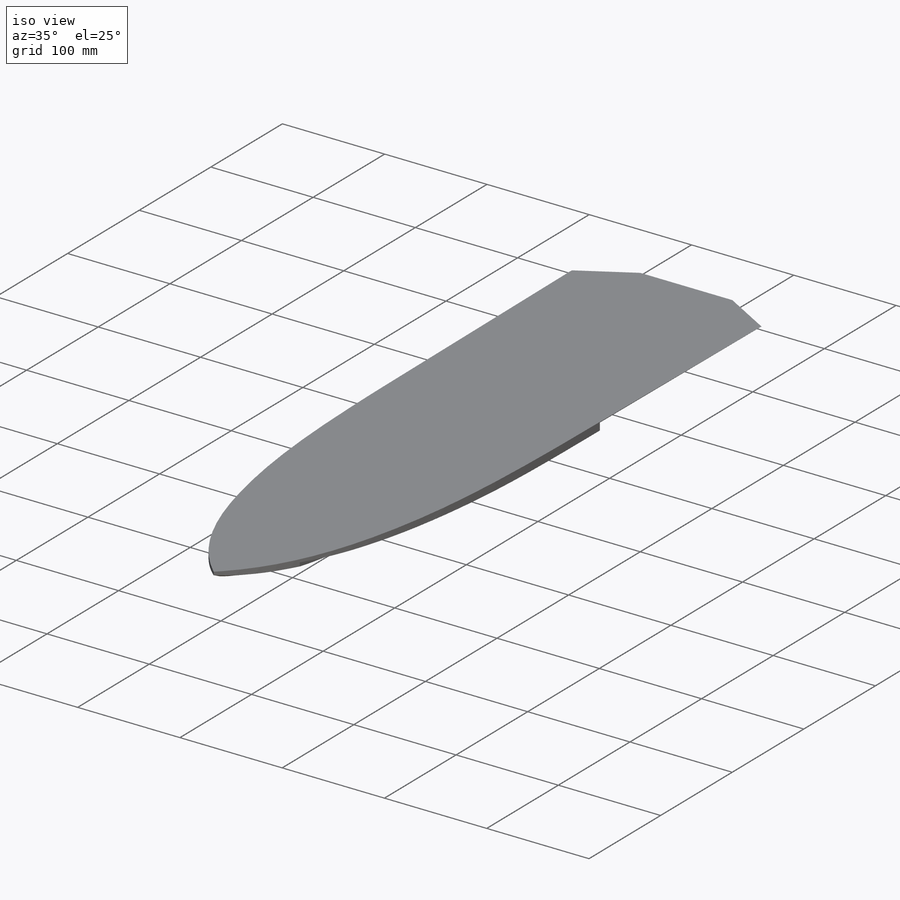
[diagram: iso view]
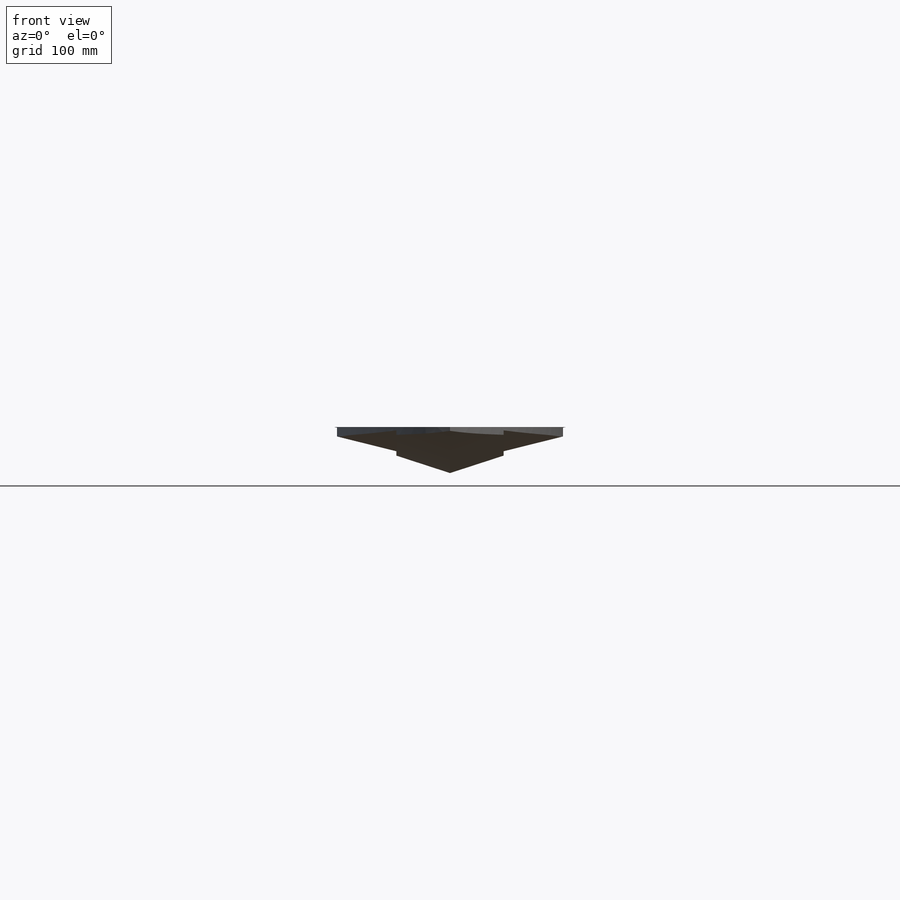
[diagram: front view]
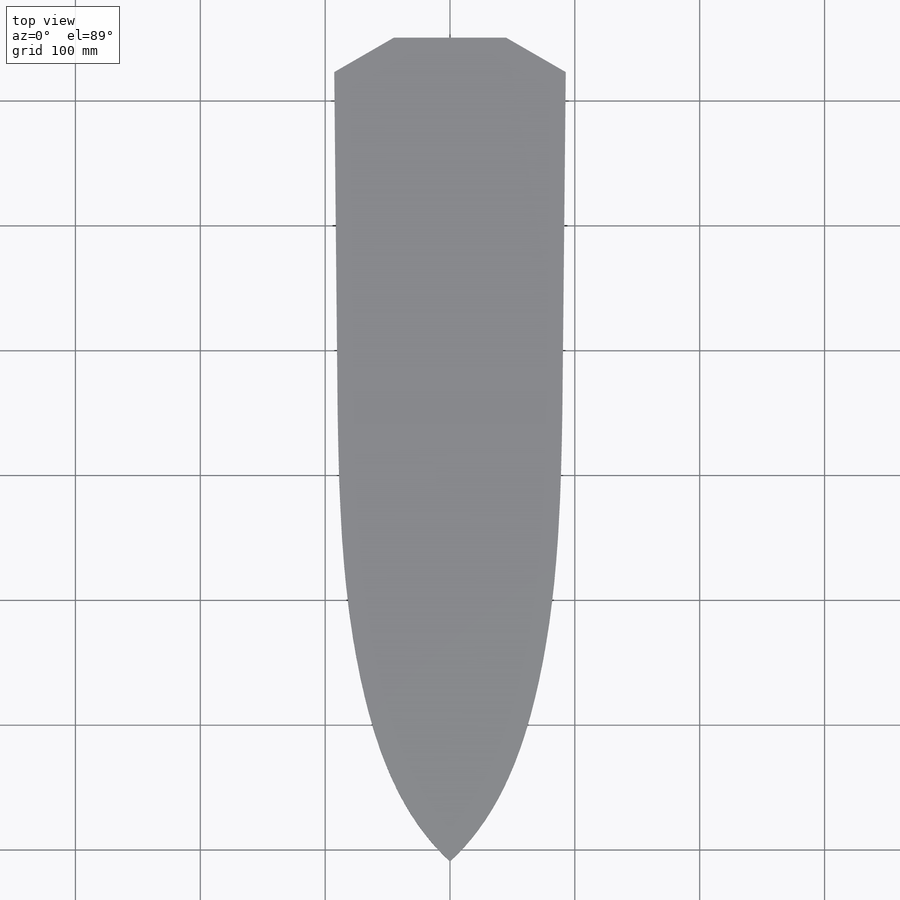
[diagram: top view]
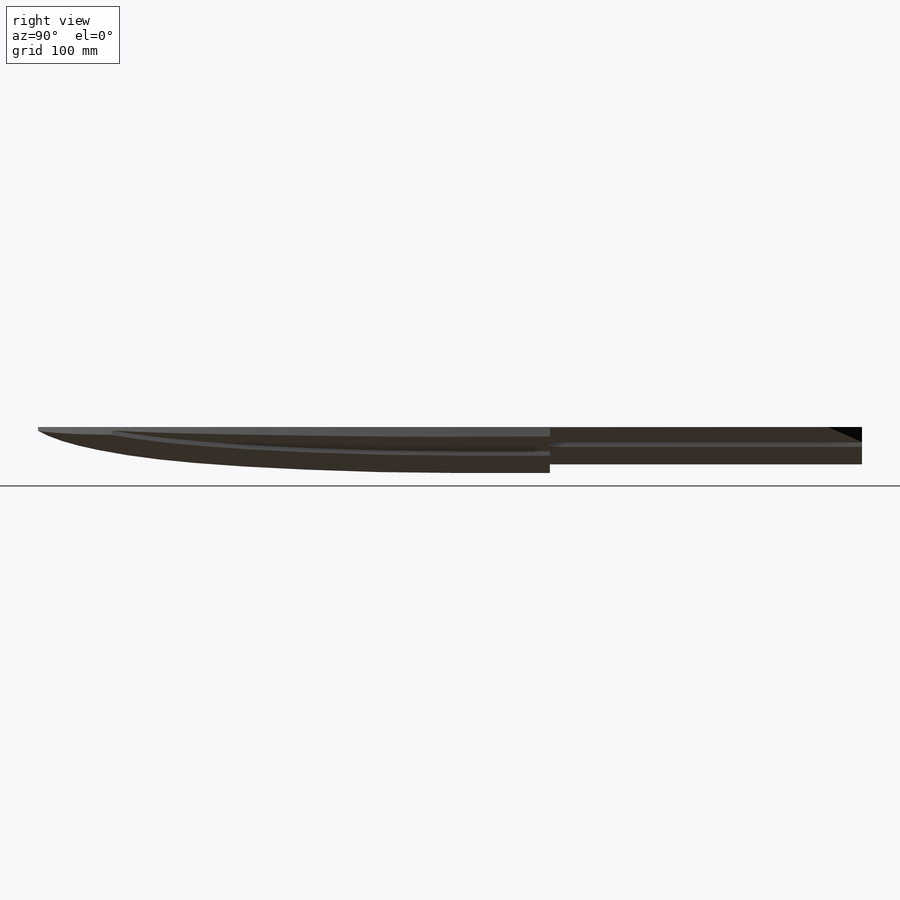
[diagram: right view]
SOLIDWORKS PART (.sldprt)
format: sldprt  version: not decoded by parser v0  size: 338,944 bytes
history: native  units: mm
features: sketch x6, plane x3, cut_extrude x3, material x1, sweep x1, extrude x1 (+10 scaffold rows collapsed)
feature tree (25):
  scaffold x10  (default folders/planes/origin — collapsed)
  material  "Matériau <non spécifié>"
  plane  "Plan de face"
  plane  "Plan de dessus"
  plane  "Plan de droite"
  sketch  "Esquisse1"  dims[c1.D1=170.0mm c1.D2=43.0mm c1.D3=43.0mm c1.D4=3.5mm c1.D5=3.5mm c1.D6=7.0mm c1.D7=7.0mm c1.D8=50.0mm c1.D9=33.0mm c1.D10=~175.890547mm c1.186=186.0mm c2.D1=93.0mm c2.D9=50.0mm c2.D10=12.0mm c2.D11=93.0mm c3.D10=~13.157895mm c4.D10=17.0deg c4.D12=~50.601944mm c5.D12=17.0deg c5.D10=~45.438481mm c6.D10=15.0deg c6.D12=~50.492187mm c7.D12=15.0deg c7.D13=~45.683558mm c8.D13=15.0deg c8.D14=49.0mm c9.D14=15.0deg c9.D10=~127.677446mm c10.D10=17.0deg c10.D12=~46.010437mm c11.D12=17.0deg c11.D10=~179.804155mm c12.D10=17.0deg c12.D12=44.0mm c13.D12=17.0deg c13.D13=49.0mm c14.D13=14.0deg c14.D14=49.0mm c15.D14=14.0deg c15.D15=~174.682733mm c16.D15=73.0deg c16.D10=~174.682733mm c17.D10=72.0deg c17.D12=~175.52705mm c18.D12=76.0deg c18.D13=44.0mm c19.D13=72.0deg c19.D14=~50.500068mm c20.D14=76.0deg c20.D15=~97.699952mm]
  sketch  "Esquisse2"  dims[c1.D2=~365.191384mm c1.D1=350.0mm c2.D2=~50.263158mm c2.D1=350.0mm c3.D2=24.0mm c3.D3=35.0mm c3.D4=10.5mm c3.D1=49.0mm c4.D2=50.0mm c4.D3=44.0mm c4.D4=33.0mm c4.D5=410.0mm c4.D6=430.0mm c4.D7=410.0mm c4.D8=350.0mm c4.D9=245.0mm c4.D10=139.0mm c4.D11=410.0mm c5.D5=16.0mm c5.D11=1.0mm c5.D1=430.0mm c5.D3=50.0mm c5.D4=49.5mm c6.D5=47.0mm c6.D6=42.0mm c6.D7=30.0mm c6.D8=8.6mm]
  sweep  "Balayage1"
  sketch  "Esquisse3"  dims[c1.D1=~46.279867mm c2.D1=1.0deg c3.D1=~12.616797mm c4.D1=15.0deg c4.D2=49.0mm c5.D2=15.0deg c5.D3=~45.552152mm c6.D3=15.0deg c6.D4=49.0mm c7.D4=15.0deg c7.D1=~45.552152mm c8.D1=18.0deg c8.D2=44.0mm c9.D2=18.0deg c9.D3=~14.296467mm c9.D4=~85.294808mm c10.D4=72.0deg c10.D5=~85.294808mm c11.D5=72.0deg c12.D5=44.0mm c13.D5=72.0deg c13.D6=~58.757957mm c13.D2=~56.240793mm c13.D1=~85.294808mm c14.D1=76.0deg c14.D2=~50.728533mm c15.D2=76.0deg c15.D3=3.5mm c15.D5=3.5mm c15.D6=~46.264338mm c16.D6=72.0deg c16.D7=3.5mm c16.D8=7.0mm]
  extrude  "Boss.-Extru.1"  Depth=250mm
  sketch  "Esquisse5"  dims[c1.D5=~371.025382mm c1.D8=~375.043742mm c1.D14=~370.198793mm c1.D1=83.0mm c1.D2=71.0mm c1.D3=54.5mm c1.D4=39.0mm c2.D5=670.0mm c2.D6=21.0mm c2.D7=320.0mm c2.D1=670.0mm c2.D2=320.0mm c2.D3=35.78mm c2.D4=45.0mm c3.D5=74.0mm c3.D6=86.0mm c3.D1=93.0mm c3.D8=~319.984782mm c4.D8=~1.064707deg c5.D8=320.0mm c6.D8=~0.505926deg c7.D8=186.0mm c7.D2=~329.230463mm c8.D2=~0.505926deg c9.D2=~90.17763mm c9.D8=~95.828616mm c10.D2=~90.17763mm c10.D8=~329.230463mm c10.D1=93.0mm c11.D8=~90.174412mm c11.D9=~90.17763mm c11.D10=24.0mm c11.D11=48.0mm c11.D12=76.0mm c11.D13=88.5mm c11.D14=320.0mm c11.D2=93.0mm c12.D8=~90.163787mm c12.D9=~90.17763mm c13.D8=90.0mm c13.D9=90.0mm c13.D10=86.0mm c13.D11=74.0mm c13.D12=45.0mm c13.D13=20.0mm c13.D14=360.0mm c13.D15=660.0mm c13.D16=360.0mm c13.D17=45.32mm c13.D3=35.78mm c13.D4=45.32mm c13.D5=69.27mm c13.D6=136.07mm c13.D7=233.31mm c14.D10=84.4mm]
  cut_extrude  "Enlèv. mat.-Extru.2"  Depth=260mm
  sketch  "Esquisse6"
  cut_extrude  "Enlèv. mat.-Extru.3"  Depth=260mm
  sketch  "Esquisse7"  dims[c1.D1=45.0mm c1.D2=45.0mm c1.D3=~47.61141mm c2.D3=30.0deg c2.D4=~296.867728mm c3.D4=30.0deg c3.D5=30.0mm c3.D6=50.0mm c3.D7=30.0mm]
  cut_extrude  "Enlèv. mat.-Extru.4"  Depth=60mm
decode coverage: 9 of 11 modeling features carry decoded parameters
note: ~ marks probable driven/reference dimensions
note: suppression state not decoded; provenance and decode notes live in map.json
